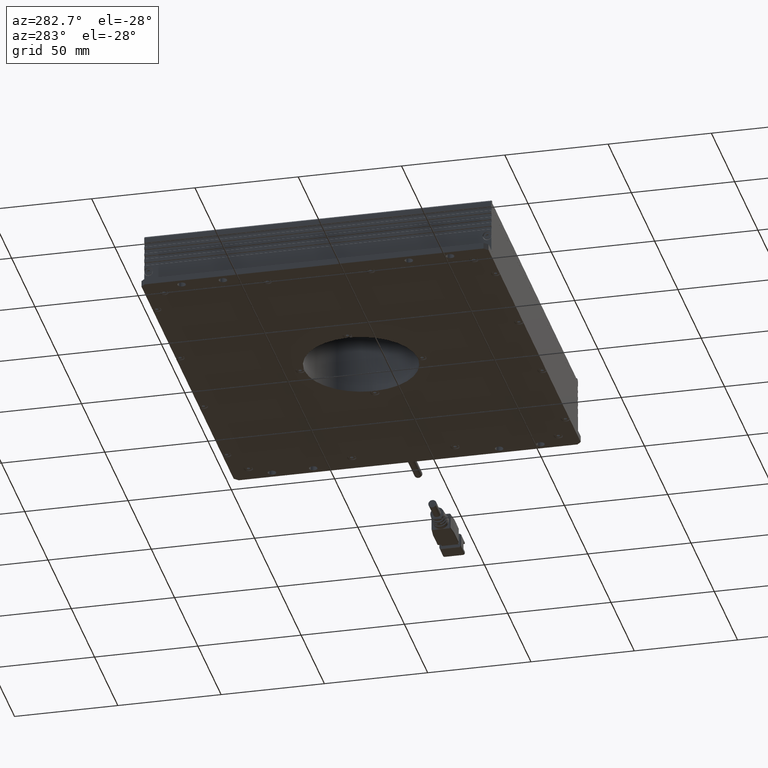
[diagram: clean part render]
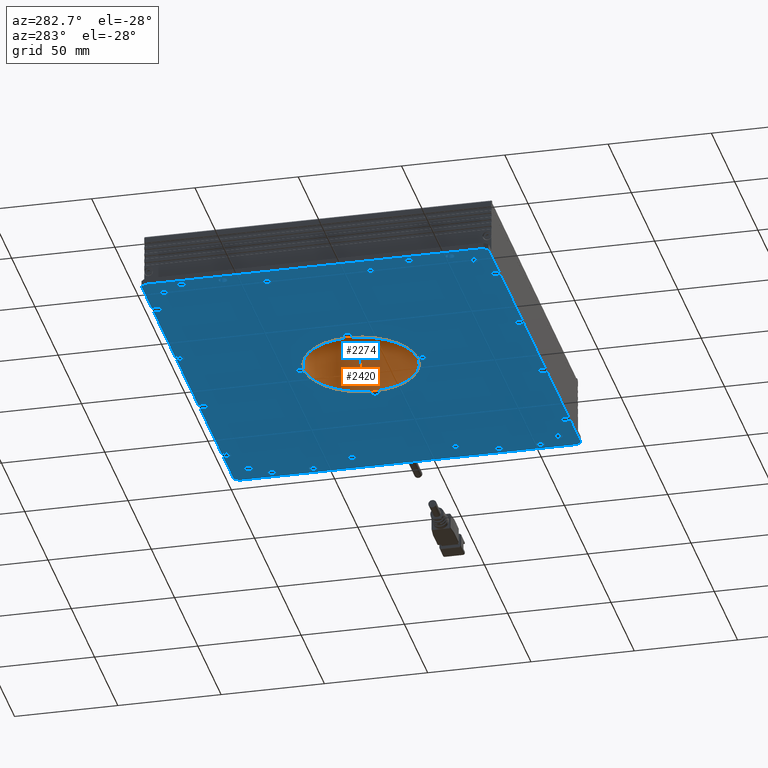
[diagram: same view with the hole feature highlighted: cylindrical wall and planar end face, labeled with their STEP entity ids]
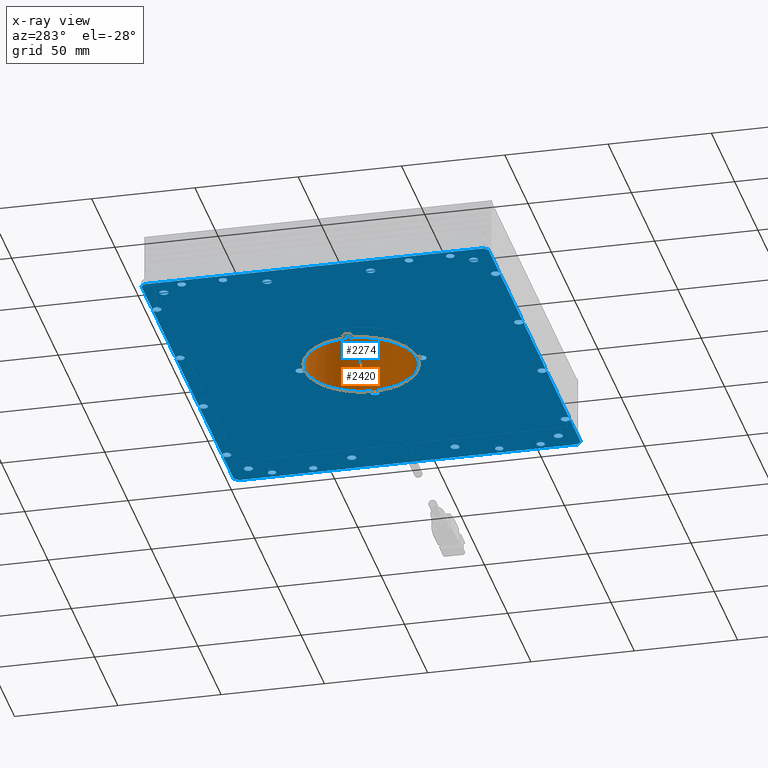
[diagram: x-ray of the same camera — body ghosted, the hole faces saturated]
A machine part, auxiliary view. The highlighted faces form one hole feature of diameter 55 mm: the cylindrical wall (entity #2420, orange) and its adjacent planar end face (entity #2274, blue) — they share a circular edge in the B-rep.
The next image is the same camera in x-ray (body ghosted, the hole faces saturated) — the bore reads through the body.
Wall:
#2420=ADVANCED_FACE('NONE',(#5833,#5834),#5835,.F.);
#5833=FACE_OUTER_BOUND('',#10135,.T.);
#5834=FACE_OUTER_BOUND('',#10136,.T.);
#5835=CYLINDRICAL_SURFACE('',#10137,0.0275);
#10135=EDGE_LOOP('',(#18453));
#10136=EDGE_LOOP('',(#18454,#18455,#18456,#18457,#18458,#18459,#18460,#18461));
#10137=AXIS2_PLACEMENT_3D('',#18462,#18463,#18464);
#18453=ORIENTED_EDGE('',*,*,#23903,.F.);
#18454=ORIENTED_EDGE('',*,*,#22347,.F.);
#18455=ORIENTED_EDGE('',*,*,#23769,.T.);
#18456=ORIENTED_EDGE('',*,*,#23850,.F.);
#18457=ORIENTED_EDGE('',*,*,#23773,.T.);
#18458=ORIENTED_EDGE('',*,*,#23852,.F.);
#18459=ORIENTED_EDGE('',*,*,#23771,.T.);
#18460=ORIENTED_EDGE('',*,*,#23748,.F.);
#18461=ORIENTED_EDGE('',*,*,#23770,.T.);
#18462=CARTESIAN_POINT('',(0.0,0.014625,-0.014625));
#18463=DIRECTION('',(0.0,-3.49148336110938E-15,1.0));
#18464=DIRECTION('',(0.0,-1.0,-3.49148336110938E-15));
#22347=EDGE_CURVE('NONE',#25024,#25023,#25026,.F.);
#23748=EDGE_CURVE('NONE',#27131,#27132,#27133,.T.);
#23769=EDGE_CURVE('NONE',#25024,#27165,#27166,.T.);
#23770=EDGE_CURVE('NONE',#27131,#25023,#27167,.T.);
#23771=EDGE_CURVE('NONE',#27168,#27132,#27169,.T.);
#23773=EDGE_CURVE('NONE',#27172,#27170,#27173,.T.);
#23850=EDGE_CURVE('NONE',#27172,#27165,#27275,.T.);
#23852=EDGE_CURVE('NONE',#27168,#27170,#27277,.T.);
#23903=EDGE_CURVE('NONE',#27334,#27334,#27335,.T.);
#25023=VERTEX_POINT('NONE',#28871);
#25024=VERTEX_POINT('NONE',#28872);
#25026=B_SPLINE_CURVE_WITH_KNOTS('',3,(#28874,#28875,#28876,#28877,#28878,#28879,#28880,#28881,#28882,#28883),.UNSPECIFIED.,.F.,.F.,(4,2,2,2,4),(0.00186098324102611,0.00231390747285522,0.00276683170468432,0.00321975593651342,0.00367268016834252),.UNSPECIFIED.);
#27131=VERTEX_POINT('NONE',#31871);
#27132=VERTEX_POINT('NONE',#31872);
#27133=B_SPLINE_CURVE_WITH_KNOTS('',3,(#31873,#31874,#31875,#31876,#31877,#31878,#31879,#31880,#31881,#31882),.UNSPECIFIED.,.F.,.F.,(4,1,1,1,1,1,1,4),(0.0,0.085618662092208,0.168344230167695,0.249003251276008,0.498608603377919,0.748838648631446,0.871851498422036,1.0),.UNSPECIFIED.);
#27165=VERTEX_POINT('NONE',#31918);
#27166=CIRCLE('',#31919,0.0275);
#27167=CIRCLE('',#31920,0.0275);
#27168=VERTEX_POINT('NONE',#31921);
#27169=CIRCLE('',#31922,0.0275);
#27170=VERTEX_POINT('NONE',#31923);
#27172=VERTEX_POINT('NONE',#31925);
#27173=CIRCLE('',#31926,0.0275);
#27275=B_SPLINE_CURVE_WITH_KNOTS('',3,(#32082,#32083,#32084,#32085,#32086,#32087,#32088,#32089),.UNSPECIFIED.,.F.,.F.,(4,2,2,4),(-0.000914020711089972,-0.000458304246018612,-2.58778094725236E-06,0.000908845149195472),.UNSPECIFIED.);
#27277=B_SPLINE_CURVE_WITH_KNOTS('',3,(#32091,#32092,#32093,#32094,#32095,#32096,#32097,#32098),.UNSPECIFIED.,.F.,.F.,(4,2,2,4),(6.50521303491303E-19,0.000452484864145696,0.000904969728291392,0.00180993945658278),.UNSPECIFIED.);
#27334=VERTEX_POINT('',#32179);
#27335=CIRCLE('',#32180,0.0275);
#28871=CARTESIAN_POINT('',(-0.000884787058021229,0.0421107627120289,-0.0146249999999999));
#28872=CARTESIAN_POINT('',(0.000884787058021256,0.0421107627120289,-0.0146249999999999));
#28874=CARTESIAN_POINT('',(-0.000884787058021281,0.042110762712029,-0.0146249999999998));
#28875=CARTESIAN_POINT('',(-0.000744059878540381,0.0421152928241609,-0.0145642553144274));
#28876=CARTESIAN_POINT('',(-0.000600616923963027,0.0421188348133049,-0.0145142490712145));
#28877=CARTESIAN_POINT('',(-0.000306083156679206,0.0421236909966974,-0.0144445164917973));
#28878=CARTESIAN_POINT('',(-0.000152719417722473,0.0421250003429214,-0.0144249949437655));
#28879=CARTESIAN_POINT('',(0.000152842891623187,0.0421249996569401,-0.0144250050619893));
#28880=CARTESIAN_POINT('',(0.000302801082724077,0.042123729151111,-0.0144439567517723));
#28881=CARTESIAN_POINT('',(0.000598013383942151,0.0421188933840678,-0.0145134196469691));
#28882=CARTESIAN_POINT('',(0.000743837703612417,0.0421152999761363,-0.0145641594129377));
#28883=CARTESIAN_POINT('',(0.00088478705802132,0.042110762712029,-0.0146249999999998));
#31871=CARTESIAN_POINT('',(-0.0274858062101199,0.0155096976200622,-0.0146249852290018));
#31872=CARTESIAN_POINT('',(-0.0274857491711939,0.0137406918422036,-0.0146249419394379));
#31873=CARTESIAN_POINT('',(-0.0274857782745126,0.0155097098902646,-0.0146249547174299));
#31874=CARTESIAN_POINT('',(-0.0274872589846702,0.0154616281246056,-0.0146049919427518));
#31875=CARTESIAN_POINT('',(-0.0274901703711073,0.0153670892982894,-0.0145657409447442));
#31876=CARTESIAN_POINT('',(-0.0274936321233399,0.0152234843730617,-0.0145173465085335));
#31877=CARTESIAN_POINT('',(-0.0274982262591327,0.0149812690828445,-0.0144509802211972));
#31878=CARTESIAN_POINT('',(-0.0275014558572533,0.0146273380241419,-0.0144054445740432));
#31879=CARTESIAN_POINT('',(-0.0274976629585496,0.0142480026045131,-0.0144540689350296));
#31880=CARTESIAN_POINT('',(-0.0274921048896001,0.0139544290725974,-0.0145379523614805));
#31881=CARTESIAN_POINT('',(-0.0274878594141131,0.013812885964589,-0.0145955123917868));
#31882=CARTESIAN_POINT('',(-0.0274856932714356,0.0137406673007653,-0.0146248808897437));
#31918=CARTESIAN_POINT('',(0.0274857627120277,0.0155097870580571,-0.014625));
#31919=AXIS2_PLACEMENT_3D('',#34831,#34832,#34833);
#31920=AXIS2_PLACEMENT_3D('',#34834,#34835,#34836);
#31921=CARTESIAN_POINT('',(-0.000884787057961988,-0.0128607627120308,-0.0146250000000001));
#31922=AXIS2_PLACEMENT_3D('',#34837,#34838,#34839);
#31923=CARTESIAN_POINT('',(0.00088478705796196,-0.0128607627120307,-0.0146250000000001));
#31925=CARTESIAN_POINT('',(0.0274857627120277,0.0137402129419429,-0.014625));
#31926=AXIS2_PLACEMENT_3D('',#34843,#34844,#34845);
#32082=CARTESIAN_POINT('',(0.0274857627120277,0.0137402129419429,-0.014625));
#32083=CARTESIAN_POINT('',(0.0274902774117975,0.0138804613389514,-0.0145644619801944));
#32084=CARTESIAN_POINT('',(0.0274938106585518,0.014023407161324,-0.0145145898456355));
#32085=CARTESIAN_POINT('',(0.0274986655084985,0.0143168868331963,-0.0144448885056745));
#32086=CARTESIAN_POINT('',(0.0274999852425832,0.0144686906886828,-0.0144252176735392));
#32087=CARTESIAN_POINT('',(0.0275000291409124,0.0149297638780404,-0.0144245701737777));
#32088=CARTESIAN_POINT('',(0.027494823755722,0.015228307243638,-0.0145034996410393));
#32089=CARTESIAN_POINT('',(0.0274857627120277,0.0155097870580571,-0.014625));
#32091=CARTESIAN_POINT('',(-0.000884787057961989,-0.0128607627120308,-0.0146250000000001));
#32092=CARTESIAN_POINT('',(-0.000744538660968094,-0.0128652774117995,-0.0145644619802027));
#32093=CARTESIAN_POINT('',(-0.000601592838610315,-0.0128688106585531,-0.0145145898456511));
#32094=CARTESIAN_POINT('',(-0.000308113166769135,-0.0128736655084987,-0.0144448885057009));
#32095=CARTESIAN_POINT('',(-0.000156309311299009,-0.0128749852425831,-0.0144252176735689));
#32096=CARTESIAN_POINT('',(0.000304763878007834,-0.0128750291409123,-0.0144245701738078));
#32097=CARTESIAN_POINT('',(0.000603307243572477,-0.012869823755723,-0.0145034996410561));
#32098=CARTESIAN_POINT('',(0.000884787057961964,-0.0128607627120308,-0.0146250000000001));
#32179=CARTESIAN_POINT('',(0.0,-0.0128750000000001,0.0146749999999999));
#32180=AXIS2_PLACEMENT_3D('',#34957,#34958,#34959);
#34831=CARTESIAN_POINT('',(0.0,0.014625,-0.014625));
#34832=DIRECTION('',(0.0,3.49148336110938E-15,-1.0));
#34833=DIRECTION('',(8.88178419700125E-16,-1.0,-3.49148336110938E-15));
#34834=CARTESIAN_POINT('',(0.0,0.014625,-0.014625));
#34835=DIRECTION('',(0.0,3.49148336110938E-15,-1.0));
#34836=DIRECTION('',(0.0,-1.0,-3.49148336110938E-15));
#34837=CARTESIAN_POINT('',(0.0,0.014625,-0.014625));
#34838=DIRECTION('',(0.0,3.49148336110938E-15,-1.0));
#34839=DIRECTION('',(0.0,-1.0,-3.49148336110938E-15));
#34843=CARTESIAN_POINT('',(0.0,0.014625,-0.014625));
#34844=DIRECTION('',(0.0,3.49148336110938E-15,-1.0));
#34845=DIRECTION('',(-8.88178419700125E-16,-1.0,-3.49148336110938E-15));
#34957=CARTESIAN_POINT('',(0.0,0.0146249999999999,0.014675));
#34958=DIRECTION('',(0.0,3.49148336110938E-15,-1.0));
#34959=DIRECTION('',(0.0,-1.0,-3.49148336110938E-15));
End face:
#2274=ADVANCED_FACE('NONE',(#5567,#5568,#5569,#5570,#5571,#5572,#5573,#5574,#5575,#5576,#5577,#5578,#5579,#5580,#5581,#5582,#5583,#5584),#5585,.F.);
#5567=FACE_BOUND('',#9869,.T.);
#5568=FACE_BOUND('',#9870,.T.);
#5569=FACE_BOUND('',#9871,.T.);
#5570=FACE_BOUND('',#9872,.T.);
#5571=FACE_BOUND('',#9873,.T.);
#5572=FACE_BOUND('',#9874,.T.);
#5573=FACE_BOUND('',#9875,.T.);
#5574=FACE_BOUND('',#9876,.T.);
#5575=FACE_BOUND('',#9877,.T.);
#5576=FACE_BOUND('',#9878,.T.);
#5577=FACE_BOUND('',#9879,.T.);
#5578=FACE_BOUND('',#9880,.T.);
#5579=FACE_BOUND('',#9881,.T.);
#5580=FACE_BOUND('',#9882,.T.);
#5581=FACE_BOUND('',#9883,.T.);
#5582=FACE_BOUND('',#9884,.T.);
#5583=FACE_BOUND('',#9885,.T.);
#5584=FACE_OUTER_BOUND('',#9886,.T.);
#5585=PLANE('',#9887);
#9869=EDGE_LOOP('',(#17739));
#9870=EDGE_LOOP('',(#17740));
#9871=EDGE_LOOP('',(#17741));
#9872=EDGE_LOOP('',(#17742));
#9873=EDGE_LOOP('',(#17743));
#9874=EDGE_LOOP('',(#17744));
#9875=EDGE_LOOP('',(#17745));
#9876=EDGE_LOOP('',(#17746));
#9877=EDGE_LOOP('',(#17747));
#9878=EDGE_LOOP('',(#17748));
#9879=EDGE_LOOP('',(#17749));
#9880=EDGE_LOOP('',(#17750));
#9881=EDGE_LOOP('',(#17751));
#9882=EDGE_LOOP('',(#17752,#17753,#17754,#17755,#17756,#17757,#17758,#17759));
#9883=EDGE_LOOP('',(#17760));
#9884=EDGE_LOOP('',(#17761));
#9885=EDGE_LOOP('',(#17762));
#9886=EDGE_LOOP('',(#17763,#17764,#17765,#17766,#17767,#17768,#17769,#17770,#17771,#17772,#17773,#17774,#17775,#17776,#17777,#17778,#17779,#17780,#17781,#17782,#17783,#17784,#17785,#17786));
#9887=AXIS2_PLACEMENT_3D('',#17787,#17788,#17789);
#17739=ORIENTED_EDGE('',*,*,#23760,.F.);
#17740=ORIENTED_EDGE('',*,*,#23761,.F.);
#17741=ORIENTED_EDGE('',*,*,#22245,.F.);
#17742=ORIENTED_EDGE('',*,*,#23762,.F.);
#17743=ORIENTED_EDGE('',*,*,#22414,.F.);
#17744=ORIENTED_EDGE('',*,*,#23763,.F.);
#17745=ORIENTED_EDGE('',*,*,#23764,.F.);
#17746=ORIENTED_EDGE('',*,*,#23765,.F.);
#17747=ORIENTED_EDGE('',*,*,#23766,.F.);
#17748=ORIENTED_EDGE('',*,*,#22417,.F.);
#17749=ORIENTED_EDGE('',*,*,#23767,.F.);
#17750=ORIENTED_EDGE('',*,*,#22298,.F.);
#17751=ORIENTED_EDGE('',*,*,#23768,.F.);
#17752=ORIENTED_EDGE('',*,*,#23769,.F.);
#17753=ORIENTED_EDGE('',*,*,#22346,.F.);
#17754=ORIENTED_EDGE('',*,*,#23770,.F.);
#17755=ORIENTED_EDGE('',*,*,#23749,.F.);
#17756=ORIENTED_EDGE('',*,*,#23771,.F.);
#17757=ORIENTED_EDGE('',*,*,#23772,.F.);
#17758=ORIENTED_EDGE('',*,*,#23773,.F.);
#17759=ORIENTED_EDGE('',*,*,#23774,.F.);
#17760=ORIENTED_EDGE('',*,*,#22448,.F.);
#17761=ORIENTED_EDGE('',*,*,#23775,.F.);
#17762=ORIENTED_EDGE('',*,*,#23757,.F.);
#17763=ORIENTED_EDGE('',*,*,#23776,.F.);
#17764=ORIENTED_EDGE('',*,*,#22313,.F.);
#17765=ORIENTED_EDGE('',*,*,#23777,.F.);
#17766=ORIENTED_EDGE('',*,*,#22292,.F.);
#17767=ORIENTED_EDGE('',*,*,#22295,.F.);
#17768=ORIENTED_EDGE('',*,*,#22290,.F.);
#17769=ORIENTED_EDGE('',*,*,#22276,.F.);
#17770=ORIENTED_EDGE('',*,*,#22289,.F.);
#17771=ORIENTED_EDGE('',*,*,#23778,.F.);
#17772=ORIENTED_EDGE('',*,*,#22287,.F.);
#17773=ORIENTED_EDGE('',*,*,#22327,.F.);
#17774=ORIENTED_EDGE('',*,*,#22285,.F.);
#17775=ORIENTED_EDGE('',*,*,#23779,.F.);
#17776=ORIENTED_EDGE('',*,*,#22270,.F.);
#17777=ORIENTED_EDGE('',*,*,#23780,.F.);
#17778=ORIENTED_EDGE('',*,*,#23781,.F.);
#17779=ORIENTED_EDGE('',*,*,#23782,.F.);
#17780=ORIENTED_EDGE('',*,*,#23783,.F.);
#17781=ORIENTED_EDGE('',*,*,#23784,.F.);
#17782=ORIENTED_EDGE('',*,*,#23785,.F.);
#17783=ORIENTED_EDGE('',*,*,#23786,.F.);
#17784=ORIENTED_EDGE('',*,*,#23787,.F.);
#17785=ORIENTED_EDGE('',*,*,#22342,.F.);
#17786=ORIENTED_EDGE('',*,*,#23788,.F.);
#17787=CARTESIAN_POINT('',(0.0,0.014625,-0.014625));
#17788=DIRECTION('',(0.0,-3.49148336110938E-15,1.0));
#17789=DIRECTION('',(1.0,0.0,0.0));
#22245=EDGE_CURVE('NONE',#24853,#24853,#24854,.T.);
#22270=EDGE_CURVE('NONE',#24898,#24899,#24900,.T.);
#22276=EDGE_CURVE('NONE',#24907,#24908,#24910,.T.);
#22285=EDGE_CURVE('NONE',#24924,#24926,#24927,.T.);
#22287=EDGE_CURVE('NONE',#24928,#24930,#24931,.T.);
#22289=EDGE_CURVE('NONE',#24932,#24907,#24934,.T.);
#22290=EDGE_CURVE('NONE',#24908,#24935,#24936,.T.);
#22292=EDGE_CURVE('NONE',#24937,#24939,#24940,.T.);
#22295=EDGE_CURVE('NONE',#24935,#24937,#24943,.T.);
#22298=EDGE_CURVE('NONE',#24947,#24947,#24948,.T.);
#22313=EDGE_CURVE('NONE',#24970,#24971,#24972,.T.);
#22327=EDGE_CURVE('NONE',#24926,#24928,#24994,.T.);
#22342=EDGE_CURVE('NONE',#25016,#25017,#25018,.T.);
#22346=EDGE_CURVE('NONE',#25023,#25024,#25025,.F.);
#22414=EDGE_CURVE('NONE',#25144,#25144,#25145,.T.);
#22417=EDGE_CURVE('NONE',#25149,#25149,#25150,.T.);
#22448=EDGE_CURVE('NONE',#25197,#25197,#25198,.T.);
#23749=EDGE_CURVE('NONE',#27132,#27131,#27134,.T.);
#23757=EDGE_CURVE('NONE',#27142,#27142,#27143,.T.);
#23760=EDGE_CURVE('NONE',#27147,#27147,#27148,.T.);
#23761=EDGE_CURVE('NONE',#27149,#27149,#27150,.T.);
#23762=EDGE_CURVE('NONE',#27151,#27151,#27152,.T.);
#23763=EDGE_CURVE('NONE',#27153,#27153,#27154,.T.);
#23764=EDGE_CURVE('NONE',#27155,#27155,#27156,.T.);
#23765=EDGE_CURVE('NONE',#27157,#27157,#27158,.T.);
#23766=EDGE_CURVE('NONE',#27159,#27159,#27160,.T.);
#23767=EDGE_CURVE('NONE',#27161,#27161,#27162,.T.);
#23768=EDGE_CURVE('NONE',#27163,#27163,#27164,.T.);
#23769=EDGE_CURVE('NONE',#25024,#27165,#27166,.T.);
#23770=EDGE_CURVE('NONE',#27131,#25023,#27167,.T.);
#23771=EDGE_CURVE('NONE',#27168,#27132,#27169,.T.);
#23772=EDGE_CURVE('NONE',#27170,#27168,#27171,.F.);
#23773=EDGE_CURVE('NONE',#27172,#27170,#27173,.T.);
#23774=EDGE_CURVE('NONE',#27165,#27172,#27174,.F.);
#23775=EDGE_CURVE('NONE',#27175,#27175,#27176,.T.);
#23776=EDGE_CURVE('NONE',#24971,#27177,#27178,.T.);
#23777=EDGE_CURVE('NONE',#24939,#24970,#27179,.T.);
#23778=EDGE_CURVE('NONE',#24930,#24932,#27180,.T.);
#23779=EDGE_CURVE('NONE',#24899,#24924,#27181,.T.);
#23780=EDGE_CURVE('NONE',#27182,#24898,#27183,.T.);
#23781=EDGE_CURVE('NONE',#27184,#27182,#27185,.T.);
#23782=EDGE_CURVE('NONE',#27186,#27184,#27187,.T.);
#23783=EDGE_CURVE('NONE',#27188,#27186,#27189,.T.);
#23784=EDGE_CURVE('NONE',#27190,#27188,#27191,.T.);
#23785=EDGE_CURVE('NONE',#27192,#27190,#27193,.T.);
#23786=EDGE_CURVE('NONE',#27194,#27192,#27195,.T.);
#23787=EDGE_CURVE('NONE',#25017,#27194,#27196,.T.);
#23788=EDGE_CURVE('NONE',#27177,#25016,#27197,.T.);
#24853=VERTEX_POINT('',#28609);
#24854=CIRCLE('',#28610,0.002);
#24898=VERTEX_POINT('NONE',#28674);
#24899=VERTEX_POINT('NONE',#28675);
#24900=LINE('',#28676,#28677);
#24907=VERTEX_POINT('NONE',#28687);
#24908=VERTEX_POINT('NONE',#28688);
#24910=CIRCLE('',#28697,0.00219999999780378);
#24924=VERTEX_POINT('NONE',#28716);
#24926=VERTEX_POINT('NONE',#28719);
#24927=LINE('',#28720,#28721);
#24928=VERTEX_POINT('NONE',#28722);
#24930=VERTEX_POINT('NONE',#28731);
#24931=LINE('',#28732,#28733);
#24932=VERTEX_POINT('NONE',#28734);
#24934=LINE('',#28741,#28742);
#24935=VERTEX_POINT('NONE',#28743);
#24936=LINE('',#28744,#28745);
#24937=VERTEX_POINT('NONE',#28746);
#24939=VERTEX_POINT('NONE',#28755);
#24940=LINE('',#28756,#28757);
#24943=CIRCLE('',#28761,0.00219999999780378);
#24947=VERTEX_POINT('',#28765);
#24948=CIRCLE('',#28766,0.00219999999891343);
#24970=VERTEX_POINT('NONE',#28795);
#24971=VERTEX_POINT('NONE',#28796);
#24972=LINE('',#28797,#28798);
#24994=CIRCLE('',#28830,0.00219999999780378);
#25016=VERTEX_POINT('NONE',#28859);
#25017=VERTEX_POINT('NONE',#28860);
#25018=CIRCLE('',#28861,0.00219999999775967);
#25023=VERTEX_POINT('NONE',#28871);
#25024=VERTEX_POINT('NONE',#28872);
#25025=CIRCLE('',#28873,0.00219999999779434);
#25144=VERTEX_POINT('',#29065);
#25145=CIRCLE('',#29066,0.002);
#25149=VERTEX_POINT('',#29070);
#25150=CIRCLE('',#29071,0.00219999999889069);
#25197=VERTEX_POINT('',#29135);
#25198=CIRCLE('',#29136,0.002);
#27131=VERTEX_POINT('NONE',#31871);
#27132=VERTEX_POINT('NONE',#31872);
#27134=CIRCLE('',#31883,0.00219999999786699);
#27142=VERTEX_POINT('',#31895);
#27143=CIRCLE('',#31896,0.002);
#27147=VERTEX_POINT('',#31900);
#27148=CIRCLE('',#31901,0.002);
#27149=VERTEX_POINT('',#31902);
#27150=CIRCLE('',#31903,0.002);
#27151=VERTEX_POINT('',#31904);
#27152=CIRCLE('',#31905,0.002);
#27153=VERTEX_POINT('',#31906);
#27154=CIRCLE('',#31907,0.00219999999889069);
#27155=VERTEX_POINT('',#31908);
#27156=CIRCLE('',#31909,0.00219999999890206);
#27157=VERTEX_POINT('',#31910);
#27158=CIRCLE('',#31911,0.00219999999891343);
#27159=VERTEX_POINT('',#31912);
#27160=CIRCLE('',#31913,0.0021999999989248);
#27161=VERTEX_POINT('',#31914);
#27162=CIRCLE('',#31915,0.00219999999890206);
#27163=VERTEX_POINT('',#31916);
#27164=CIRCLE('',#31917,0.0021999999989248);
#27165=VERTEX_POINT('NONE',#31918);
#27166=CIRCLE('',#31919,0.0275);
#27167=CIRCLE('',#31920,0.0275);
#27168=VERTEX_POINT('NONE',#31921);
#27169=CIRCLE('',#31922,0.0275);
#27170=VERTEX_POINT('NONE',#31923);
#27171=CIRCLE('',#31924,0.00219999999776876);
#27172=VERTEX_POINT('NONE',#31925);
#27173=CIRCLE('',#31926,0.0275);
#27174=CIRCLE('',#31927,0.00219999999780981);
#27175=VERTEX_POINT('',#31928);
#27176=CIRCLE('',#31929,0.002);
#27177=VERTEX_POINT('NONE',#31930);
#27178=LINE('',#31931,#31932);
#27179=LINE('',#31933,#31934);
#27180=CIRCLE('',#31935,0.00219999999780378);
#27181=LINE('',#31936,#31937);
#27182=VERTEX_POINT('NONE',#31938);
#27183=LINE('',#31939,#31940);
#27184=VERTEX_POINT('NONE',#31941);
#27185=LINE('',#31942,#31943);
#27186=VERTEX_POINT('NONE',#31944);
#27187=CIRCLE('',#31945,0.00219999999775967);
#27188=VERTEX_POINT('NONE',#31946);
#27189=LINE('',#31947,#31948);
#27190=VERTEX_POINT('NONE',#31949);
#27191=CIRCLE('',#31950,0.00219999999775967);
#27192=VERTEX_POINT('NONE',#31951);
#27193=LINE('',#31952,#31953);
#27194=VERTEX_POINT('NONE',#31954);
#27195=CIRCLE('',#31955,0.00219999999775967);
#27196=LINE('',#31956,#31957);
#27197=LINE('',#31958,#31959);
#28609=CARTESIAN_POINT('',(-0.097,0.0816250000000001,-0.0146249999999998));
#28610=AXIS2_PLACEMENT_3D('',#33369,#33370,#33371);
#28674=CARTESIAN_POINT('',(0.101,-0.0673749999999999,-0.0146250000000003));
#28675=CARTESIAN_POINT('',(0.101,0.0966250000000001,-0.0146249999999997));
#28676=CARTESIAN_POINT('',(0.101,0.014625,-0.014625));
#28677=VECTOR('',#33395,1.0);
#28687=CARTESIAN_POINT('',(-0.0240834848662806,0.0986250000000001,-0.0146249999999997));
#28688=CARTESIAN_POINT('',(-0.0259165151337194,0.0986250000000001,-0.0146249999999997));
#28697=AXIS2_PLACEMENT_3D('',#33399,#33400,#33401);
#28716=CARTESIAN_POINT('',(0.099,0.0986250000000001,-0.0146249999999997));
#28719=CARTESIAN_POINT('',(0.0759165151337194,0.0986250000000001,-0.0146249999999997));
#28720=CARTESIAN_POINT('',(0.0,0.0986250000000001,-0.0146249999999997));
#28721=VECTOR('',#33411,1.0);
#28722=CARTESIAN_POINT('',(0.0740834848662806,0.0986250000000001,-0.0146249999999997));
#28731=CARTESIAN_POINT('',(0.0259165151337194,0.0986250000000001,-0.0146249999999997));
#28732=CARTESIAN_POINT('',(0.0,0.0986250000000001,-0.0146249999999997));
#28733=VECTOR('',#33412,1.0);
#28734=CARTESIAN_POINT('',(0.0240834848662806,0.0986250000000001,-0.0146249999999997));
#28741=CARTESIAN_POINT('',(0.0,0.0986250000000001,-0.0146249999999997));
#28742=VECTOR('',#33413,1.0);
#28743=CARTESIAN_POINT('',(-0.0740834848662806,0.0986250000000001,-0.0146249999999997));
#28744=CARTESIAN_POINT('',(0.0,0.0986250000000001,-0.0146249999999997));
#28745=VECTOR('',#33414,1.0);
#28746=CARTESIAN_POINT('',(-0.0759165151337194,0.0986250000000001,-0.0146249999999997));
#28755=CARTESIAN_POINT('',(-0.099,0.0986250000000001,-0.0146249999999997));
#28756=CARTESIAN_POINT('',(0.0,0.0986250000000001,-0.0146249999999997));
#28757=VECTOR('',#33415,1.0);
#28761=AXIS2_PLACEMENT_3D('',#33417,#33418,#33419);
#28765=CARTESIAN_POINT('',(0.09075,0.0418249999989135,-0.0146250000010799));
#28766=AXIS2_PLACEMENT_3D('',#33423,#33424,#33425);
#28795=CARTESIAN_POINT('',(-0.101,0.0966250000000001,-0.0146249999999997));
#28796=CARTESIAN_POINT('',(-0.101,-0.0673749999999999,-0.0146250000000003));
#28797=CARTESIAN_POINT('',(-0.101,0.014625,-0.014625));
#28798=VECTOR('',#33442,1.0);
#28830=AXIS2_PLACEMENT_3D('',#33453,#33454,#33455);
#28859=CARTESIAN_POINT('',(-0.0759165151336135,-0.069375,-0.0146250000000003));
#28860=CARTESIAN_POINT('',(-0.0740834848663865,-0.069375,-0.0146250000000003));
#28861=AXIS2_PLACEMENT_3D('',#33472,#33473,#33474);
#28871=CARTESIAN_POINT('',(-0.000884787058021229,0.0421107627120289,-0.0146249999999999));
#28872=CARTESIAN_POINT('',(0.000884787058021256,0.0421107627120289,-0.0146249999999999));
#28873=AXIS2_PLACEMENT_3D('',#33478,#33479,#33480);
#29065=CARTESIAN_POINT('',(0.097,-0.048375,-0.0146250000000002));
#29066=AXIS2_PLACEMENT_3D('',#33549,#33550,#33551);
#29070=CARTESIAN_POINT('',(0.09075,-0.0581750000011093,-0.0146250000010803));
#29071=AXIS2_PLACEMENT_3D('',#33555,#33556,#33557);
#29135=CARTESIAN_POINT('',(0.097,-0.032375,-0.0146250000000002));
#29136=AXIS2_PLACEMENT_3D('',#33590,#33591,#33592);
#31871=CARTESIAN_POINT('',(-0.0274858062101199,0.0155096976200622,-0.0146249852290018));
#31872=CARTESIAN_POINT('',(-0.0274857491711939,0.0137406918422036,-0.0146249419394379));
#31883=AXIS2_PLACEMENT_3D('',#34791,#34792,#34793);
#31895=CARTESIAN_POINT('',(-0.097,-0.0283749999999999,-0.0146250000000001));
#31896=AXIS2_PLACEMENT_3D('',#34798,#34799,#34800);
#31900=CARTESIAN_POINT('',(-0.097,0.061625,-0.0146249999999998));
#31901=AXIS2_PLACEMENT_3D('',#34804,#34805,#34806);
#31902=CARTESIAN_POINT('',(-0.097,-0.052375,-0.0146250000000002));
#31903=AXIS2_PLACEMENT_3D('',#34807,#34808,#34809);
#31904=CARTESIAN_POINT('',(0.097,0.0776250000000001,-0.0146249999999998));
#31905=AXIS2_PLACEMENT_3D('',#34810,#34811,#34812);
#31906=CARTESIAN_POINT('',(-0.09075,-0.0581750000011093,-0.0146250000010803));
#31907=AXIS2_PLACEMENT_3D('',#34813,#34814,#34815);
#31908=CARTESIAN_POINT('',(-0.09075,-0.00817500000109789,-0.0146250000010801));
#31909=AXIS2_PLACEMENT_3D('',#34816,#34817,#34818);
#31910=CARTESIAN_POINT('',(-0.09075,0.0418249999989135,-0.0146250000010799));
#31911=AXIS2_PLACEMENT_3D('',#34819,#34820,#34821);
#31912=CARTESIAN_POINT('',(-0.09075,0.0918249999989248,-0.0146250000010798));
#31913=AXIS2_PLACEMENT_3D('',#34822,#34823,#34824);
#31914=CARTESIAN_POINT('',(0.09075,-0.00817500000109789,-0.0146250000010801));
#31915=AXIS2_PLACEMENT_3D('',#34825,#34826,#34827);
#31916=CARTESIAN_POINT('',(0.09075,0.0918249999989248,-0.0146250000010798));
#31917=AXIS2_PLACEMENT_3D('',#34828,#34829,#34830);
#31918=CARTESIAN_POINT('',(0.0274857627120277,0.0155097870580571,-0.014625));
#31919=AXIS2_PLACEMENT_3D('',#34831,#34832,#34833);
#31920=AXIS2_PLACEMENT_3D('',#34834,#34835,#34836);
#31921=CARTESIAN_POINT('',(-0.000884787057961988,-0.0128607627120308,-0.0146250000000001));
#31922=AXIS2_PLACEMENT_3D('',#34837,#34838,#34839);
#31923=CARTESIAN_POINT('',(0.00088478705796196,-0.0128607627120307,-0.0146250000000001));
#31924=AXIS2_PLACEMENT_3D('',#34840,#34841,#34842);
#31925=CARTESIAN_POINT('',(0.0274857627120277,0.0137402129419429,-0.014625));
#31926=AXIS2_PLACEMENT_3D('',#34843,#34844,#34845);
#31927=AXIS2_PLACEMENT_3D('',#34846,#34847,#34848);
#31928=CARTESIAN_POINT('',(0.097,0.057625,-0.0146249999999998));
#31929=AXIS2_PLACEMENT_3D('',#34849,#34850,#34851);
#31930=CARTESIAN_POINT('',(-0.099,-0.069375,-0.0146250000000003));
#31931=CARTESIAN_POINT('',(-0.101,-0.0673749999999999,-0.0146250000000003));
#31932=VECTOR('',#34852,1.0);
#31933=CARTESIAN_POINT('',(-0.099,0.0986250000000001,-0.0146249999999997));
#31934=VECTOR('',#34853,1.0);
#31935=AXIS2_PLACEMENT_3D('',#34854,#34855,#34856);
#31936=CARTESIAN_POINT('',(0.101,0.0966250000000001,-0.0146249999999997));
#31937=VECTOR('',#34857,1.0);
#31938=CARTESIAN_POINT('',(0.099,-0.069375,-0.0146250000000003));
#31939=CARTESIAN_POINT('',(0.099,-0.069375,-0.0146250000000003));
#31940=VECTOR('',#34858,1.0);
#31941=CARTESIAN_POINT('',(0.0759165151336135,-0.069375,-0.0146250000000003));
#31942=CARTESIAN_POINT('',(0.0,-0.069375,-0.0146250000000003));
#31943=VECTOR('',#34859,1.0);
#31944=CARTESIAN_POINT('',(0.0740834848663865,-0.069375,-0.0146250000000003));
#31945=AXIS2_PLACEMENT_3D('',#34860,#34861,#34862);
#31946=CARTESIAN_POINT('',(0.0259165151336135,-0.069375,-0.0146250000000003));
#31947=CARTESIAN_POINT('',(0.0,-0.069375,-0.0146250000000003));
#31948=VECTOR('',#34863,1.0);
#31949=CARTESIAN_POINT('',(0.0240834848663865,-0.069375,-0.0146250000000003));
#31950=AXIS2_PLACEMENT_3D('',#34864,#34865,#34866);
#31951=CARTESIAN_POINT('',(-0.0240834848663865,-0.069375,-0.0146250000000003));
#31952=CARTESIAN_POINT('',(0.0,-0.069375,-0.0146250000000003));
#31953=VECTOR('',#34867,1.0);
#31954=CARTESIAN_POINT('',(-0.0259165151336135,-0.069375,-0.0146250000000003));
#31955=AXIS2_PLACEMENT_3D('',#34868,#34869,#34870);
#31956=CARTESIAN_POINT('',(0.0,-0.069375,-0.0146250000000003));
#31957=VECTOR('',#34871,1.0);
#31958=CARTESIAN_POINT('',(0.0,-0.069375,-0.0146250000000003));
#31959=VECTOR('',#34872,1.0);
#33369=CARTESIAN_POINT('',(-0.097,0.0796250000000001,-0.0146249999999998));
#33370=DIRECTION('',(0.0,3.49148336110938E-15,-1.0));
#33371=DIRECTION('',(0.0,1.0,3.49148336110938E-15));
#33395=DIRECTION('',(0.0,1.0,3.49148336110938E-15));
#33399=CARTESIAN_POINT('',(-0.025,0.0966250000000001,-0.0146249999999997));
#33400=DIRECTION('',(0.0,3.49148336110938E-15,-1.0));
#33401=DIRECTION('',(0.0,-1.0,-3.49148336110938E-15));
#33411=DIRECTION('',(-1.0,-0.0,0.0));
#33412=DIRECTION('',(-1.0,-0.0,0.0));
#33413=DIRECTION('',(-1.0,-0.0,0.0));
#33414=DIRECTION('',(-1.0,-0.0,0.0));
#33415=DIRECTION('',(-1.0,-0.0,0.0));
#33417=CARTESIAN_POINT('',(-0.075,0.0966250000000001,-0.0146249999999997));
#33418=DIRECTION('',(0.0,3.49148336110938E-15,-1.0));
#33419=DIRECTION('',(0.0,-1.0,-3.49148336110938E-15));
#33423=CARTESIAN_POINT('',(0.09075,0.039625,-0.0146250000010799));
#33424=DIRECTION('',(0.0,3.49148336110938E-15,-1.0));
#33425=DIRECTION('',(0.0,1.0,3.49148336110938E-15));
#33442=DIRECTION('',(0.0,-1.0,-3.49148336110938E-15));
#33453=CARTESIAN_POINT('',(0.075,0.0966250000000001,-0.0146249999999997));
#33454=DIRECTION('',(0.0,3.49148336110938E-15,-1.0));
#33455=DIRECTION('',(0.0,-1.0,-3.49148336110938E-15));
#33472=CARTESIAN_POINT('',(-0.075,-0.0673749999999999,-0.0146250000000003));
#33473=DIRECTION('',(0.0,3.49148336110938E-15,-1.0));
#33474=DIRECTION('',(0.0,-1.0,-3.49148336110938E-15));
#33478=CARTESIAN_POINT('',(-1.66533453693773E-19,0.0441250000000001,-0.0146249999999999));
#33479=DIRECTION('',(0.0,-3.49148336110938E-15,1.0));
#33480=DIRECTION('',(0.0,-1.0,-3.49148336110938E-15));
#33549=CARTESIAN_POINT('',(0.097,-0.050375,-0.0146250000000002));
#33550=DIRECTION('',(0.0,3.49148336110938E-15,-1.0));
#33551=DIRECTION('',(0.0,1.0,3.49148336110938E-15));
#33555=CARTESIAN_POINT('',(0.09075,-0.0603749999999999,-0.0146250000010803));
#33556=DIRECTION('',(0.0,3.49148336110938E-15,-1.0));
#33557=DIRECTION('',(0.0,1.0,3.49148336110938E-15));
#33590=CARTESIAN_POINT('',(0.097,-0.030375,-0.0146250000000002));
#33591=DIRECTION('',(0.0,3.49148336110938E-15,-1.0));
#33592=DIRECTION('',(0.0,-1.0,-3.49148336110938E-15));
#34791=CARTESIAN_POINT('',(-0.0295,0.014625,-0.014625));
#34792=DIRECTION('',(0.0,3.49148336110938E-15,-1.0));
#34793=DIRECTION('',(0.0,-1.0,-3.49148336110938E-15));
#34798=CARTESIAN_POINT('',(-0.097,-0.030375,-0.0146250000000002));
#34799=DIRECTION('',(0.0,3.49148336110938E-15,-1.0));
#34800=DIRECTION('',(0.0,1.0,3.49148336110938E-15));
#34804=CARTESIAN_POINT('',(-0.097,0.059625,-0.0146249999999998));
#34805=DIRECTION('',(0.0,3.49148336110938E-15,-1.0));
#34806=DIRECTION('',(0.0,1.0,3.49148336110938E-15));
#34807=CARTESIAN_POINT('',(-0.097,-0.050375,-0.0146250000000002));
#34808=DIRECTION('',(0.0,3.49148336110938E-15,-1.0));
#34809=DIRECTION('',(0.0,-1.0,-3.49148336110938E-15));
#34810=CARTESIAN_POINT('',(0.097,0.0796250000000001,-0.0146249999999998));
#34811=DIRECTION('',(0.0,3.49148336110938E-15,-1.0));
#34812=DIRECTION('',(0.0,-1.0,-3.49148336110938E-15));
#34813=CARTESIAN_POINT('',(-0.09075,-0.0603749999999999,-0.0146250000010803));
#34814=DIRECTION('',(0.0,3.49148336110938E-15,-1.0));
#34815=DIRECTION('',(0.0,1.0,3.49148336110938E-15));
#34816=CARTESIAN_POINT('',(-0.09075,-0.010375,-0.0146250000010801));
#34817=DIRECTION('',(0.0,3.49148336110938E-15,-1.0));
#34818=DIRECTION('',(0.0,1.0,3.49148336110938E-15));
#34819=CARTESIAN_POINT('',(-0.09075,0.039625,-0.0146250000010799));
#34820=DIRECTION('',(0.0,3.49148336110938E-15,-1.0));
#34821=DIRECTION('',(0.0,1.0,3.49148336110938E-15));
#34822=CARTESIAN_POINT('',(-0.09075,0.0896250000000001,-0.0146250000010798));
#34823=DIRECTION('',(0.0,3.49148336110938E-15,-1.0));
#34824=DIRECTION('',(0.0,1.0,3.49148336110938E-15));
#34825=CARTESIAN_POINT('',(0.09075,-0.010375,-0.0146250000010801));
#34826=DIRECTION('',(0.0,3.49148336110938E-15,-1.0));
#34827=DIRECTION('',(0.0,1.0,3.49148336110938E-15));
#34828=CARTESIAN_POINT('',(0.09075,0.0896250000000001,-0.0146250000010798));
#34829=DIRECTION('',(0.0,3.49148336110938E-15,-1.0));
#34830=DIRECTION('',(0.0,1.0,3.49148336110938E-15));
#34831=CARTESIAN_POINT('',(0.0,0.014625,-0.014625));
#34832=DIRECTION('',(0.0,3.49148336110938E-15,-1.0));
#34833=DIRECTION('',(8.88178419700125E-16,-1.0,-3.49148336110938E-15));
#34834=CARTESIAN_POINT('',(0.0,0.014625,-0.014625));
#34835=DIRECTION('',(0.0,3.49148336110938E-15,-1.0));
#34836=DIRECTION('',(0.0,-1.0,-3.49148336110938E-15));
#34837=CARTESIAN_POINT('',(0.0,0.014625,-0.014625));
#34838=DIRECTION('',(0.0,3.49148336110938E-15,-1.0));
#34839=DIRECTION('',(0.0,-1.0,-3.49148336110938E-15));
#34840=CARTESIAN_POINT('',(2.88742228935813E-18,-0.014875,-0.0146250000000001));
#34841=DIRECTION('',(0.0,-3.49148336110938E-15,1.0));
#34842=DIRECTION('',(0.0,-1.0,-3.49148336110938E-15));
#34843=CARTESIAN_POINT('',(0.0,0.014625,-0.014625));
#34844=DIRECTION('',(0.0,3.49148336110938E-15,-1.0));
#34845=DIRECTION('',(-8.88178419700125E-16,-1.0,-3.49148336110938E-15));
#34846=CARTESIAN_POINT('',(0.0295,0.014625,-0.014625));
#34847=DIRECTION('',(0.0,-3.49148336110938E-15,1.0));
#34848=DIRECTION('',(0.0,-1.0,-3.49148336110938E-15));
#34849=CARTESIAN_POINT('',(0.097,0.059625,-0.0146249999999998));
#34850=DIRECTION('',(0.0,3.49148336110938E-15,-1.0));
#34851=DIRECTION('',(0.0,-1.0,-3.49148336110938E-15));
#34852=DIRECTION('',(0.707106781186548,-0.707106781186548,-2.46885156104044E-15));
#34853=DIRECTION('',(-0.707106781186548,-0.707106781186548,-2.46885156104044E-15));
#34854=CARTESIAN_POINT('',(0.025,0.0966250000000001,-0.0146249999999997));
#34855=DIRECTION('',(0.0,3.49148336110938E-15,-1.0));
#34856=DIRECTION('',(0.0,-1.0,-3.49148336110938E-15));
#34857=DIRECTION('',(-0.707106781186548,0.707106781186548,2.46885156104044E-15));
#34858=DIRECTION('',(0.707106781186548,0.707106781186548,2.46885156104044E-15));
#34859=DIRECTION('',(1.0,0.0,0.0));
#34860=CARTESIAN_POINT('',(0.075,-0.0673749999999999,-0.0146250000000003));
#34861=DIRECTION('',(0.0,3.49148336110938E-15,-1.0));
#34862=DIRECTION('',(0.0,-1.0,-3.49148336110938E-15));
#34863=DIRECTION('',(1.0,0.0,0.0));
#34864=CARTESIAN_POINT('',(0.025,-0.0673749999999999,-0.0146250000000003));
#34865=DIRECTION('',(0.0,3.49148336110938E-15,-1.0));
#34866=DIRECTION('',(0.0,-1.0,-3.49148336110938E-15));
#34867=DIRECTION('',(1.0,0.0,0.0));
#34868=CARTESIAN_POINT('',(-0.025,-0.0673749999999999,-0.0146250000000003));
#34869=DIRECTION('',(0.0,3.49148336110938E-15,-1.0));
#34870=DIRECTION('',(0.0,-1.0,-3.49148336110938E-15));
#34871=DIRECTION('',(1.0,0.0,0.0));
#34872=DIRECTION('',(1.0,0.0,0.0));